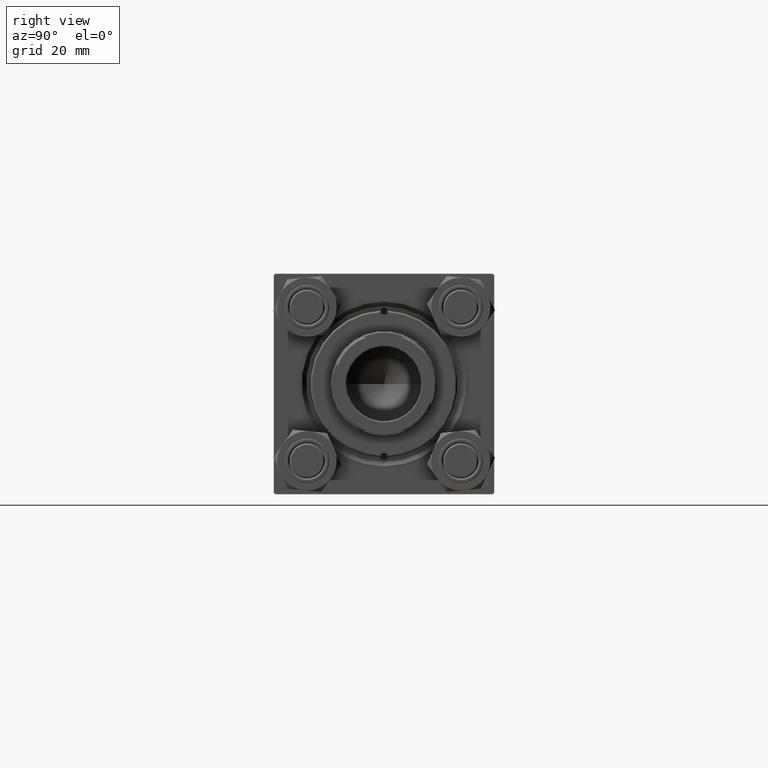
[diagram: clean part render]
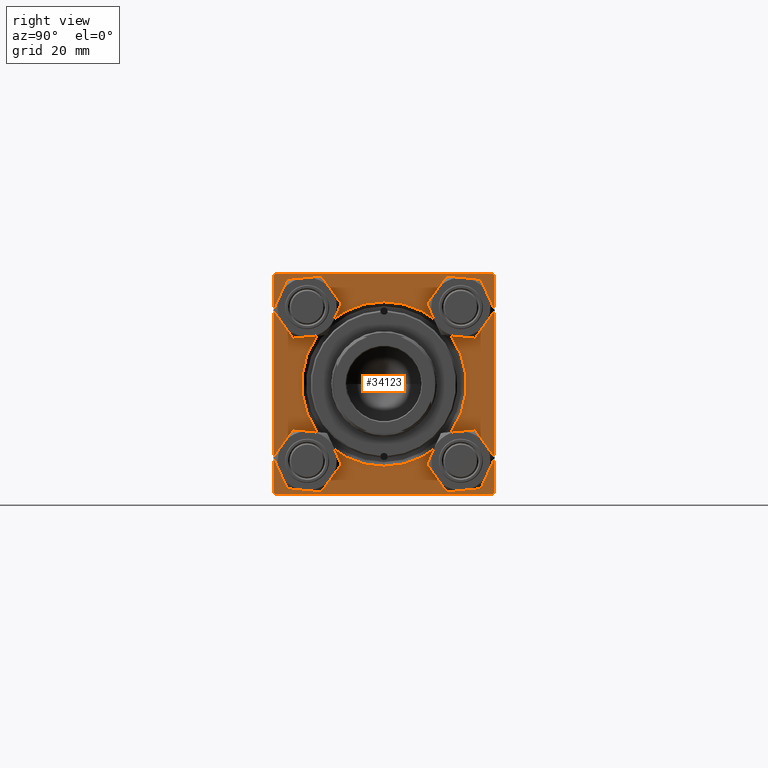
[diagram: same view with one face highlighted and labeled with its STEP entity id]
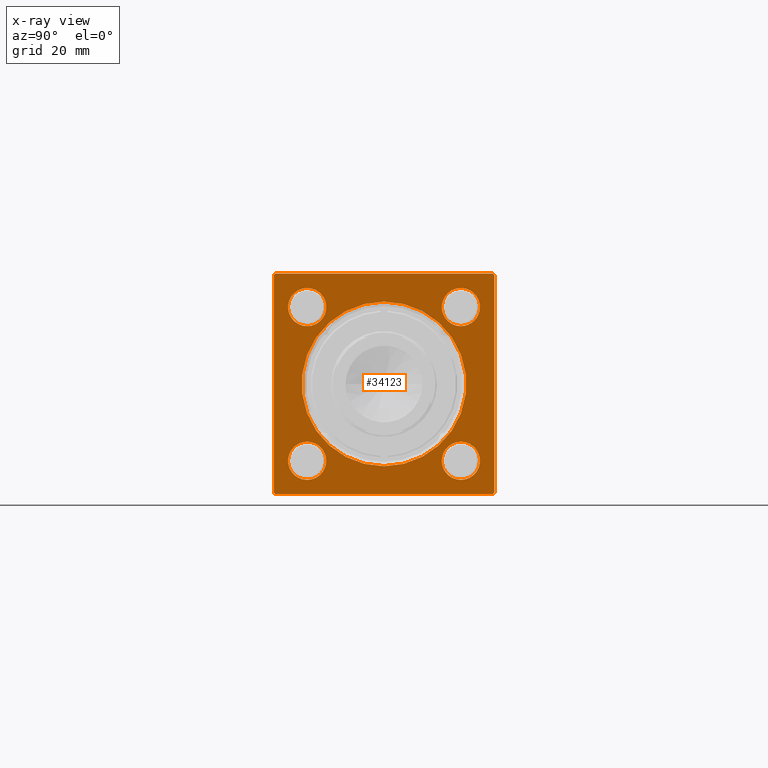
[diagram: x-ray of the same camera — body ghosted, the highlighted face saturated]
A machine part, right view. The second image highlights one B-rep face of the part: STEP entity #34123.
The next image is the same camera in x-ray: the body ghosted, the highlighted face saturated — about 0% of this face is hidden behind the body in this view.
In plain terms, the highlighted planar face has unit normal (-1, 0, 0).
Its self-contained STEP definition (entity closure, byte-faithful):
#399 = CARTESIAN_POINT ( 'NONE',  ( 154.0000000000000000, 26.14999999999999858, 19.64999999999999858 ) ) ;
#537 = VECTOR ( 'NONE', #37122, 999.9999999999998863 ) ;
#891 = EDGE_LOOP ( 'NONE', ( #4797, #39272 ) ) ;
#1094 = CIRCLE ( 'NONE', #9957, 6.500000000000002665 ) ;
#1810 = DIRECTION ( 'NONE',  ( -1.000000000000000000, -0.000000000000000000, 0.000000000000000000 ) ) ;
#1902 = CARTESIAN_POINT ( 'NONE',  ( 154.0000000000000000, 26.14999999999999858, -26.15000000000000213 ) ) ;
#2350 = CARTESIAN_POINT ( 'NONE',  ( 154.0000000000000000, 26.14999999999999858, 26.15000000000000213 ) ) ;
#2678 = VECTOR ( 'NONE', #49996, 1000.000000000000000 ) ;
#2993 = CARTESIAN_POINT ( 'NONE',  ( 154.0000000000000000, 37.50000000000000000, -37.50000000000000000 ) ) ;
#3059 = VECTOR ( 'NONE', #29229, 1000.000000000000114 ) ;
#3273 = CIRCLE ( 'NONE', #36349, 27.99999999999999645 ) ;
#3654 = EDGE_LOOP ( 'NONE', ( #36856, #28959, #43187, #6448, #39087, #20941, #34404, #33782 ) ) ;
#4181 = DIRECTION ( 'NONE',  ( -1.000000000000000000, -0.000000000000000000, 0.000000000000000000 ) ) ;
#4342 = AXIS2_PLACEMENT_3D ( 'NONE', #1902, #29442, #14025 ) ;
#4797 = ORIENTED_EDGE ( 'NONE', *, *, #30035, .T. ) ;
#5604 = FACE_OUTER_BOUND ( 'NONE', #3654, .T. ) ;
#5720 = CARTESIAN_POINT ( 'NONE',  ( 154.0000000000000000, 37.50000000000000000, -36.99999999999999289 ) ) ;
#6448 = ORIENTED_EDGE ( 'NONE', *, *, #40314, .T. ) ;
#6603 = VECTOR ( 'NONE', #43390, 1000.000000000000000 ) ;
#6822 = CARTESIAN_POINT ( 'NONE',  ( 154.0000000000000000, -37.50000000000000711, -37.00000000000000711 ) ) ;
#7544 = CARTESIAN_POINT ( 'NONE',  ( 154.0000000000000000, 26.14999999999999858, -26.15000000000000213 ) ) ;
#8024 = EDGE_CURVE ( 'NONE', #9594, #9334, #33661, .T. ) ;
#8240 = VECTOR ( 'NONE', #14751, 1000.000000000000000 ) ;
#9334 = VERTEX_POINT ( 'NONE', #27595 ) ;
#9386 = FACE_BOUND ( 'NONE', #25026, .T. ) ;
#9594 = VERTEX_POINT ( 'NONE', #48518 ) ;
#9957 = AXIS2_PLACEMENT_3D ( 'NONE', #7544, #26763, #19177 ) ;
#11875 = EDGE_LOOP ( 'NONE', ( #41890, #21565 ) ) ;
#11899 = AXIS2_PLACEMENT_3D ( 'NONE', #14136, #36135, #48742 ) ;
#12696 = CIRCLE ( 'NONE', #11899, 27.99999999999999645 ) ;
#12932 = CARTESIAN_POINT ( 'NONE',  ( 154.0000000000000000, -26.14999999999999147, 32.65000000000004832 ) ) ;
#13735 = VERTEX_POINT ( 'NONE', #46198 ) ;
#14025 = DIRECTION ( 'NONE',  ( 0.000000000000000000, 0.000000000000000000, 1.000000000000000000 ) ) ;
#14098 = VERTEX_POINT ( 'NONE', #49704 ) ;
#14136 = CARTESIAN_POINT ( 'NONE',  ( 154.0000000000000000, 0.000000000000000000, 0.000000000000000000 ) ) ;
#14459 = DIRECTION ( 'NONE',  ( 0.000000000000000000, -1.000000000000000000, -1.850371707708594316E-16 ) ) ;
#14683 = DIRECTION ( 'NONE',  ( -1.000000000000000000, -0.000000000000000000, 0.000000000000000000 ) ) ;
#14751 = DIRECTION ( 'NONE',  ( 0.000000000000000000, 0.000000000000000000, -1.000000000000000000 ) ) ;
#14771 = LINE ( 'NONE', #45582, #42161 ) ;
#15364 = EDGE_CURVE ( 'NONE', #40910, #29463, #30692, .T. ) ;
#15422 = EDGE_CURVE ( 'NONE', #13735, #15775, #3273, .T. ) ;
#15775 = VERTEX_POINT ( 'NONE', #45684 ) ;
#15951 = CIRCLE ( 'NONE', #44968, 6.500000000000037303 ) ;
#16042 = CARTESIAN_POINT ( 'NONE',  ( 154.0000000000000000, 37.00000000000000000, -37.50000000000000000 ) ) ;
#17227 = CIRCLE ( 'NONE', #20479, 6.500000000000037303 ) ;
#17727 = PLANE ( 'NONE',  #44735 ) ;
#17783 = AXIS2_PLACEMENT_3D ( 'NONE', #32951, #14683, #44315 ) ;
#17957 = ORIENTED_EDGE ( 'NONE', *, *, #32372, .T. ) ;
#18277 = DIRECTION ( 'NONE',  ( -1.000000000000000000, -0.000000000000000000, 0.000000000000000000 ) ) ;
#18664 = DIRECTION ( 'NONE',  ( 0.000000000000000000, 0.000000000000000000, 1.000000000000000000 ) ) ;
#18807 = DIRECTION ( 'NONE',  ( -0.000000000000000000, -0.7071067811865474617, -0.7071067811865474617 ) ) ;
#18872 = DIRECTION ( 'NONE',  ( 0.000000000000000000, 0.000000000000000000, 1.000000000000000000 ) ) ;
#19177 = DIRECTION ( 'NONE',  ( 0.000000000000000000, 0.000000000000000000, 1.000000000000000000 ) ) ;
#19217 = VERTEX_POINT ( 'NONE', #32466 ) ;
#19315 = EDGE_CURVE ( 'NONE', #49887, #33553, #49102, .T. ) ;
#20126 = CARTESIAN_POINT ( 'NONE',  ( 154.0000000000000000, 37.50000000000000000, 36.99999999999999289 ) ) ;
#20479 = AXIS2_PLACEMENT_3D ( 'NONE', #25114, #32183, #48068 ) ;
#20941 = ORIENTED_EDGE ( 'NONE', *, *, #47642, .T. ) ;
#21163 = CARTESIAN_POINT ( 'NONE',  ( 154.0000000000000000, 26.14999999999999858, 32.65000000000001279 ) ) ;
#21565 = ORIENTED_EDGE ( 'NONE', *, *, #15422, .T. ) ;
#21723 = VECTOR ( 'NONE', #14459, 1000.000000000000000 ) ;
#22444 = EDGE_CURVE ( 'NONE', #29463, #40910, #28338, .T. ) ;
#22586 = CARTESIAN_POINT ( 'NONE',  ( 154.0000000000000000, 37.50000000000000000, 37.49999999999999289 ) ) ;
#22940 = CARTESIAN_POINT ( 'NONE',  ( 154.0000000000000000, -26.14999999999999147, -19.65000000000000924 ) ) ;
#24092 = EDGE_CURVE ( 'NONE', #26537, #14098, #46251, .T. ) ;
#24204 = DIRECTION ( 'NONE',  ( -1.000000000000000000, -0.000000000000000000, 0.000000000000000000 ) ) ;
#24590 = FACE_BOUND ( 'NONE', #891, .T. ) ;
#24697 = ORIENTED_EDGE ( 'NONE', *, *, #32557, .T. ) ;
#25010 = CARTESIAN_POINT ( 'NONE',  ( 154.0000000000000000, 26.14999999999999858, 26.15000000000000213 ) ) ;
#25026 = EDGE_LOOP ( 'NONE', ( #24697, #47976 ) ) ;
#25114 = CARTESIAN_POINT ( 'NONE',  ( 154.0000000000000000, -26.14999999999999147, 26.15000000000000924 ) ) ;
#25115 = AXIS2_PLACEMENT_3D ( 'NONE', #31515, #24204, #28478 ) ;
#25407 = ORIENTED_EDGE ( 'NONE', *, *, #22444, .T. ) ;
#26136 = CIRCLE ( 'NONE', #4342, 6.500000000000002665 ) ;
#26257 = LINE ( 'NONE', #2993, #28521 ) ;
#26537 = VERTEX_POINT ( 'NONE', #6822 ) ;
#26757 = CARTESIAN_POINT ( 'NONE',  ( 154.0000000000000000, 37.50000000000000000, -36.99999999999999289 ) ) ;
#26763 = DIRECTION ( 'NONE',  ( -1.000000000000000000, -0.000000000000000000, 0.000000000000000000 ) ) ;
#26972 = CIRCLE ( 'NONE', #31796, 6.500000000000002665 ) ;
#27555 = CARTESIAN_POINT ( 'NONE',  ( 154.0000000000000000, 0.000000000000000000, 0.000000000000000000 ) ) ;
#27595 = CARTESIAN_POINT ( 'NONE',  ( 154.0000000000000000, -36.99999999999997158, 37.49999999999997868 ) ) ;
#28338 = CIRCLE ( 'NONE', #25115, 6.500000000000002665 ) ;
#28358 = DIRECTION ( 'NONE',  ( 0.000000000000000000, 0.000000000000000000, 1.000000000000000000 ) ) ;
#28478 = DIRECTION ( 'NONE',  ( 0.000000000000000000, 0.000000000000000000, 1.000000000000000000 ) ) ;
#28521 = VECTOR ( 'NONE', #45691, 1000.000000000000000 ) ;
#28535 = EDGE_CURVE ( 'NONE', #19217, #26537, #31560, .T. ) ;
#28907 = CARTESIAN_POINT ( 'NONE',  ( 154.0000000000000000, -26.14999999999999147, 19.64999999999997726 ) ) ;
#28959 = ORIENTED_EDGE ( 'NONE', *, *, #24092, .T. ) ;
#29229 = DIRECTION ( 'NONE',  ( 0.000000000000000000, -0.7071067811865474617, 0.7071067811865474617 ) ) ;
#29428 = CARTESIAN_POINT ( 'NONE',  ( 154.0000000000000000, 26.14999999999999858, -19.65000000000000213 ) ) ;
#29442 = DIRECTION ( 'NONE',  ( -1.000000000000000000, -0.000000000000000000, 0.000000000000000000 ) ) ;
#29463 = VERTEX_POINT ( 'NONE', #22940 ) ;
#30035 = EDGE_CURVE ( 'NONE', #32191, #47603, #26972, .T. ) ;
#30527 = EDGE_CURVE ( 'NONE', #9334, #19217, #14771, .T. ) ;
#30541 = LINE ( 'NONE', #26757, #537 ) ;
#30692 = CIRCLE ( 'NONE', #17783, 6.500000000000002665 ) ;
#30906 = EDGE_CURVE ( 'NONE', #37961, #14098, #26257, .T. ) ;
#31515 = CARTESIAN_POINT ( 'NONE',  ( 154.0000000000000000, -26.14999999999999147, -26.15000000000000924 ) ) ;
#31560 = LINE ( 'NONE', #46965, #2678 ) ;
#31796 = AXIS2_PLACEMENT_3D ( 'NONE', #2350, #18277, #32936 ) ;
#31965 = EDGE_CURVE ( 'NONE', #41081, #45952, #1094, .T. ) ;
#32183 = DIRECTION ( 'NONE',  ( -1.000000000000000000, -0.000000000000000000, 0.000000000000000000 ) ) ;
#32191 = VERTEX_POINT ( 'NONE', #399 ) ;
#32372 = EDGE_CURVE ( 'NONE', #45952, #41081, #26136, .T. ) ;
#32466 = CARTESIAN_POINT ( 'NONE',  ( 154.0000000000000000, -37.50000000000000000, 36.99999999999995026 ) ) ;
#32557 = EDGE_CURVE ( 'NONE', #38047, #34142, #17227, .T. ) ;
#32936 = DIRECTION ( 'NONE',  ( 0.000000000000000000, 0.000000000000000000, 1.000000000000000000 ) ) ;
#32951 = CARTESIAN_POINT ( 'NONE',  ( 154.0000000000000000, -26.14999999999999147, -26.15000000000000924 ) ) ;
#33553 = VERTEX_POINT ( 'NONE', #5720 ) ;
#33605 = EDGE_LOOP ( 'NONE', ( #48112, #25407 ) ) ;
#33661 = LINE ( 'NONE', #44535, #21723 ) ;
#33782 = ORIENTED_EDGE ( 'NONE', *, *, #30527, .T. ) ;
#34123 = ADVANCED_FACE ( 'NONE', ( #47549, #36671, #24590, #9386, #44255, #5604 ), #17727, .F. ) ;
#34142 = VERTEX_POINT ( 'NONE', #12932 ) ;
#34404 = ORIENTED_EDGE ( 'NONE', *, *, #8024, .T. ) ;
#36135 = DIRECTION ( 'NONE',  ( -1.000000000000000000, -0.000000000000000000, 0.000000000000000000 ) ) ;
#36310 = LINE ( 'NONE', #41098, #3059 ) ;
#36349 = AXIS2_PLACEMENT_3D ( 'NONE', #27555, #42955, #18872 ) ;
#36426 = CARTESIAN_POINT ( 'NONE',  ( 154.0000000000000000, 0.000000000000000000, 0.000000000000000000 ) ) ;
#36671 = FACE_BOUND ( 'NONE', #49459, .T. ) ;
#36856 = ORIENTED_EDGE ( 'NONE', *, *, #28535, .T. ) ;
#37122 = DIRECTION ( 'NONE',  ( -0.000000000000000000, 0.7071067811865425767, 0.7071067811865525687 ) ) ;
#37864 = CARTESIAN_POINT ( 'NONE',  ( 154.0000000000000000, -26.14999999999999147, 26.15000000000000924 ) ) ;
#37961 = VERTEX_POINT ( 'NONE', #16042 ) ;
#38047 = VERTEX_POINT ( 'NONE', #28907 ) ;
#38521 = EDGE_CURVE ( 'NONE', #47603, #32191, #43214, .T. ) ;
#38671 = CARTESIAN_POINT ( 'NONE',  ( 154.0000000000000000, -36.99999999999998579, -37.50000000000000000 ) ) ;
#39087 = ORIENTED_EDGE ( 'NONE', *, *, #19315, .F. ) ;
#39272 = ORIENTED_EDGE ( 'NONE', *, *, #38521, .T. ) ;
#39860 = ORIENTED_EDGE ( 'NONE', *, *, #31965, .T. ) ;
#39956 = CARTESIAN_POINT ( 'NONE',  ( 154.0000000000000000, 26.14999999999999858, -32.65000000000000568 ) ) ;
#40314 = EDGE_CURVE ( 'NONE', #37961, #33553, #30541, .T. ) ;
#40910 = VERTEX_POINT ( 'NONE', #49054 ) ;
#41081 = VERTEX_POINT ( 'NONE', #39956 ) ;
#41098 = CARTESIAN_POINT ( 'NONE',  ( 154.0000000000000000, 37.00000000000000000, 37.49999999999999289 ) ) ;
#41890 = ORIENTED_EDGE ( 'NONE', *, *, #46466, .T. ) ;
#42161 = VECTOR ( 'NONE', #18807, 1000.000000000000114 ) ;
#42955 = DIRECTION ( 'NONE',  ( -1.000000000000000000, -0.000000000000000000, 0.000000000000000000 ) ) ;
#43187 = ORIENTED_EDGE ( 'NONE', *, *, #30906, .F. ) ;
#43214 = CIRCLE ( 'NONE', #48074, 6.500000000000002665 ) ;
#43390 = DIRECTION ( 'NONE',  ( 0.000000000000000000, 0.7071067811865671127, -0.7071067811865279218 ) ) ;
#43690 = DIRECTION ( 'NONE',  ( 0.000000000000000000, 0.000000000000000000, 1.000000000000000000 ) ) ;
#43941 = DIRECTION ( 'NONE',  ( -1.000000000000000000, -0.000000000000000000, 0.000000000000000000 ) ) ;
#44255 = FACE_BOUND ( 'NONE', #11875, .T. ) ;
#44315 = DIRECTION ( 'NONE',  ( 0.000000000000000000, 0.000000000000000000, 1.000000000000000000 ) ) ;
#44535 = CARTESIAN_POINT ( 'NONE',  ( 154.0000000000000000, 37.50000000000000000, 37.49999999999999289 ) ) ;
#44735 = AXIS2_PLACEMENT_3D ( 'NONE', #36426, #1810, #28358 ) ;
#44968 = AXIS2_PLACEMENT_3D ( 'NONE', #37864, #4181, #18664 ) ;
#45582 = CARTESIAN_POINT ( 'NONE',  ( 154.0000000000000000, -37.50000000000000000, 36.99999999999995026 ) ) ;
#45684 = CARTESIAN_POINT ( 'NONE',  ( 154.0000000000000000, 0.000000000000000000, -27.99999999999999645 ) ) ;
#45691 = DIRECTION ( 'NONE',  ( 0.000000000000000000, -1.000000000000000000, 0.000000000000000000 ) ) ;
#45777 = EDGE_CURVE ( 'NONE', #34142, #38047, #15951, .T. ) ;
#45952 = VERTEX_POINT ( 'NONE', #29428 ) ;
#46198 = CARTESIAN_POINT ( 'NONE',  ( 154.0000000000000000, 3.429011037612588881E-15, 27.99999999999999645 ) ) ;
#46251 = LINE ( 'NONE', #38671, #6603 ) ;
#46466 = EDGE_CURVE ( 'NONE', #15775, #13735, #12696, .T. ) ;
#46965 = CARTESIAN_POINT ( 'NONE',  ( 154.0000000000000000, -37.50000000000000000, 37.49999999999997868 ) ) ;
#47549 = FACE_BOUND ( 'NONE', #33605, .T. ) ;
#47603 = VERTEX_POINT ( 'NONE', #21163 ) ;
#47642 = EDGE_CURVE ( 'NONE', #49887, #9594, #36310, .T. ) ;
#47976 = ORIENTED_EDGE ( 'NONE', *, *, #45777, .T. ) ;
#48068 = DIRECTION ( 'NONE',  ( 0.000000000000000000, 0.000000000000000000, 1.000000000000000000 ) ) ;
#48074 = AXIS2_PLACEMENT_3D ( 'NONE', #25010, #43941, #43690 ) ;
#48112 = ORIENTED_EDGE ( 'NONE', *, *, #15364, .T. ) ;
#48518 = CARTESIAN_POINT ( 'NONE',  ( 154.0000000000000000, 37.00000000000000000, 37.49999999999999289 ) ) ;
#48742 = DIRECTION ( 'NONE',  ( 0.000000000000000000, 0.000000000000000000, 1.000000000000000000 ) ) ;
#49054 = CARTESIAN_POINT ( 'NONE',  ( 154.0000000000000000, -26.14999999999999147, -32.65000000000001279 ) ) ;
#49102 = LINE ( 'NONE', #22586, #8240 ) ;
#49459 = EDGE_LOOP ( 'NONE', ( #39860, #17957 ) ) ;
#49704 = CARTESIAN_POINT ( 'NONE',  ( 154.0000000000000000, -36.99999999999998579, -37.50000000000000000 ) ) ;
#49887 = VERTEX_POINT ( 'NONE', #20126 ) ;
#49996 = DIRECTION ( 'NONE',  ( 0.000000000000000000, -9.251858538542972814E-17, -1.000000000000000000 ) ) ;